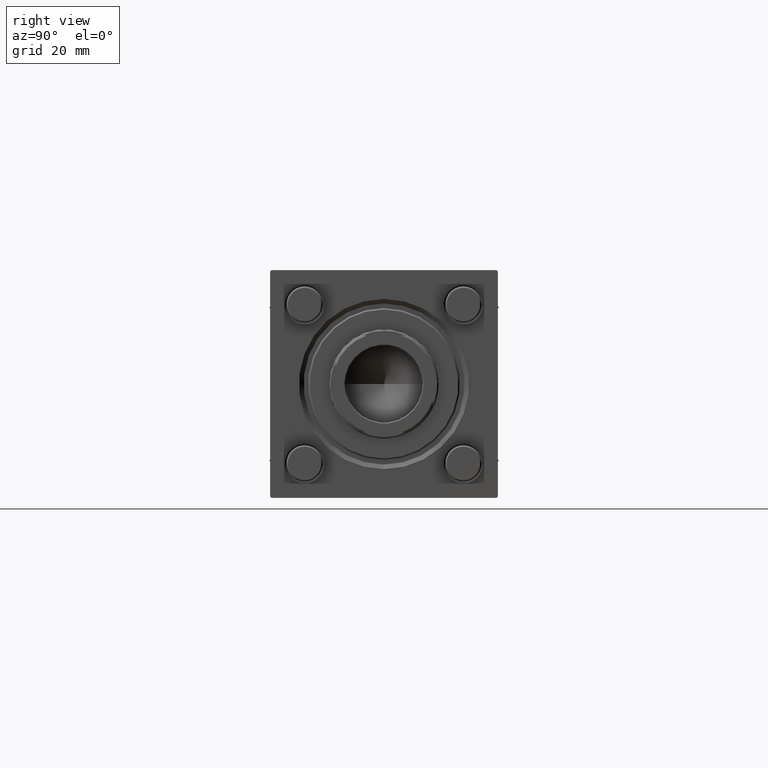
[diagram: clean part render]
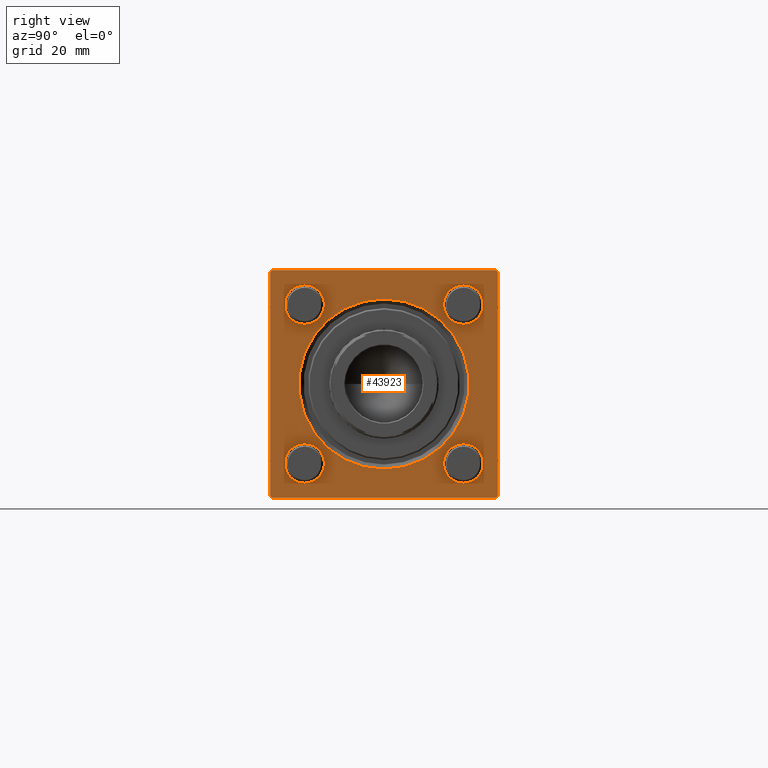
[diagram: same view with one face highlighted and labeled with its STEP entity id]
A machine part, right view. The second image highlights one B-rep face of the part: STEP entity #43923.
In plain terms, the highlighted planar face has unit normal (-1, 0, 0).
Its self-contained STEP definition (entity closure, byte-faithful):
#707 = DIRECTION ( 'NONE',  ( 0.000000000000000000, 0.000000000000000000, 1.000000000000000000 ) ) ;
#2027 = EDGE_CURVE ( 'NONE', #37401, #33654, #27386, .T. ) ;
#2113 = CIRCLE ( 'NONE', #7625, 27.99999999999999645 ) ;
#2155 = ORIENTED_EDGE ( 'NONE', *, *, #34070, .F. ) ;
#2345 = DIRECTION ( 'NONE',  ( 0.000000000000000000, 0.000000000000000000, 1.000000000000000000 ) ) ;
#2879 = CARTESIAN_POINT ( 'NONE',  ( 154.0000000000000000, 37.00000000000000000, 37.49999999999999289 ) ) ;
#2925 = DIRECTION ( 'NONE',  ( -1.000000000000000000, -0.000000000000000000, 0.000000000000000000 ) ) ;
#3000 = DIRECTION ( 'NONE',  ( -0.000000000000000000, 0.7071067811865425767, 0.7071067811865525687 ) ) ;
#3288 = CARTESIAN_POINT ( 'NONE',  ( 154.0000000000000000, 26.14999999999999858, -26.15000000000000213 ) ) ;
#3568 = VERTEX_POINT ( 'NONE', #23471 ) ;
#3899 = CIRCLE ( 'NONE', #51566, 6.500000000000002665 ) ;
#3925 = DIRECTION ( 'NONE',  ( 0.000000000000000000, 0.000000000000000000, 1.000000000000000000 ) ) ;
#3942 = DIRECTION ( 'NONE',  ( 0.000000000000000000, 0.000000000000000000, 1.000000000000000000 ) ) ;
#4030 = EDGE_CURVE ( 'NONE', #33654, #37401, #48496, .T. ) ;
#4685 = VERTEX_POINT ( 'NONE', #53277 ) ;
#6078 = FACE_BOUND ( 'NONE', #44342, .T. ) ;
#6622 = DIRECTION ( 'NONE',  ( 0.000000000000000000, -0.7071067811865474617, 0.7071067811865474617 ) ) ;
#7210 = EDGE_CURVE ( 'NONE', #14480, #38340, #38343, .T. ) ;
#7625 = AXIS2_PLACEMENT_3D ( 'NONE', #39410, #31104, #707 ) ;
#8717 = DIRECTION ( 'NONE',  ( -1.000000000000000000, -0.000000000000000000, 0.000000000000000000 ) ) ;
#8883 = EDGE_CURVE ( 'NONE', #42831, #14836, #41612, .T. ) ;
#9360 = EDGE_CURVE ( 'NONE', #4685, #3568, #12115, .T. ) ;
#9481 = CIRCLE ( 'NONE', #52485, 6.500000000000002665 ) ;
#9485 = ORIENTED_EDGE ( 'NONE', *, *, #8883, .T. ) ;
#10055 = DIRECTION ( 'NONE',  ( 0.000000000000000000, 0.000000000000000000, 1.000000000000000000 ) ) ;
#10107 = FACE_BOUND ( 'NONE', #34733, .T. ) ;
#10405 = DIRECTION ( 'NONE',  ( 0.000000000000000000, 0.000000000000000000, 1.000000000000000000 ) ) ;
#10755 = EDGE_CURVE ( 'NONE', #18927, #45772, #35847, .T. ) ;
#10757 = LINE ( 'NONE', #54901, #42349 ) ;
#11010 = DIRECTION ( 'NONE',  ( -1.000000000000000000, -0.000000000000000000, 0.000000000000000000 ) ) ;
#11147 = EDGE_CURVE ( 'NONE', #3568, #14480, #48894, .T. ) ;
#11401 = CARTESIAN_POINT ( 'NONE',  ( 154.0000000000000000, 26.14999999999999858, -26.15000000000000213 ) ) ;
#12115 = LINE ( 'NONE', #56271, #20290 ) ;
#12269 = DIRECTION ( 'NONE',  ( 0.000000000000000000, 0.000000000000000000, 1.000000000000000000 ) ) ;
#12478 = EDGE_LOOP ( 'NONE', ( #28608, #18610 ) ) ;
#12971 = CARTESIAN_POINT ( 'NONE',  ( 154.0000000000000000, 26.14999999999999858, -19.65000000000000213 ) ) ;
#13017 = EDGE_CURVE ( 'NONE', #30245, #17537, #10757, .T. ) ;
#13065 = ORIENTED_EDGE ( 'NONE', *, *, #2027, .T. ) ;
#13114 = CIRCLE ( 'NONE', #54320, 27.99999999999999645 ) ;
#13455 = ORIENTED_EDGE ( 'NONE', *, *, #13812, .T. ) ;
#13605 = CARTESIAN_POINT ( 'NONE',  ( 154.0000000000000000, 26.14999999999999858, -32.65000000000000568 ) ) ;
#13812 = EDGE_CURVE ( 'NONE', #45772, #18927, #3899, .T. ) ;
#14480 = VERTEX_POINT ( 'NONE', #40857 ) ;
#14836 = VERTEX_POINT ( 'NONE', #43831 ) ;
#14847 = VERTEX_POINT ( 'NONE', #16900 ) ;
#15669 = EDGE_CURVE ( 'NONE', #46744, #53798, #9481, .T. ) ;
#16216 = EDGE_CURVE ( 'NONE', #33070, #14847, #13114, .T. ) ;
#16238 = VECTOR ( 'NONE', #25627, 1000.000000000000000 ) ;
#16568 = DIRECTION ( 'NONE',  ( -1.000000000000000000, -0.000000000000000000, 0.000000000000000000 ) ) ;
#16900 = CARTESIAN_POINT ( 'NONE',  ( 154.0000000000000000, 3.429011037612588881E-15, 27.99999999999999645 ) ) ;
#17537 = VERTEX_POINT ( 'NONE', #41691 ) ;
#18610 = ORIENTED_EDGE ( 'NONE', *, *, #55695, .T. ) ;
#18927 = VERTEX_POINT ( 'NONE', #30986 ) ;
#20111 = CARTESIAN_POINT ( 'NONE',  ( 154.0000000000000000, -26.14999999999999147, -32.65000000000001279 ) ) ;
#20157 = ORIENTED_EDGE ( 'NONE', *, *, #46773, .T. ) ;
#20290 = VECTOR ( 'NONE', #43650, 1000.000000000000114 ) ;
#20308 = EDGE_CURVE ( 'NONE', #41506, #24732, #56138, .T. ) ;
#20595 = CARTESIAN_POINT ( 'NONE',  ( 154.0000000000000000, -26.14999999999999147, -26.15000000000000924 ) ) ;
#21295 = AXIS2_PLACEMENT_3D ( 'NONE', #54530, #46242, #2345 ) ;
#21401 = DIRECTION ( 'NONE',  ( 0.000000000000000000, 0.000000000000000000, 1.000000000000000000 ) ) ;
#21567 = ORIENTED_EDGE ( 'NONE', *, *, #33244, .T. ) ;
#21840 = EDGE_CURVE ( 'NONE', #53798, #46744, #27815, .T. ) ;
#22130 = AXIS2_PLACEMENT_3D ( 'NONE', #25746, #38935, #3942 ) ;
#22441 = CIRCLE ( 'NONE', #48058, 6.500000000000002665 ) ;
#23471 = CARTESIAN_POINT ( 'NONE',  ( 154.0000000000000000, -37.50000000000000000, 36.99999999999995026 ) ) ;
#23516 = CARTESIAN_POINT ( 'NONE',  ( 154.0000000000000000, 37.50000000000000000, 37.49999999999999289 ) ) ;
#23844 = VECTOR ( 'NONE', #34046, 1000.000000000000000 ) ;
#24314 = CARTESIAN_POINT ( 'NONE',  ( 154.0000000000000000, -36.99999999999998579, -37.50000000000000000 ) ) ;
#24331 = DIRECTION ( 'NONE',  ( -1.000000000000000000, -0.000000000000000000, 0.000000000000000000 ) ) ;
#24589 = DIRECTION ( 'NONE',  ( 0.000000000000000000, 0.000000000000000000, 1.000000000000000000 ) ) ;
#24732 = VERTEX_POINT ( 'NONE', #26244 ) ;
#24779 = CARTESIAN_POINT ( 'NONE',  ( 154.0000000000000000, -26.14999999999999147, -26.15000000000000924 ) ) ;
#24842 = VECTOR ( 'NONE', #6622, 1000.000000000000114 ) ;
#25627 = DIRECTION ( 'NONE',  ( 0.000000000000000000, -1.000000000000000000, -1.850371707708594316E-16 ) ) ;
#25746 = CARTESIAN_POINT ( 'NONE',  ( 154.0000000000000000, -26.14999999999999147, 26.15000000000000924 ) ) ;
#25904 = CARTESIAN_POINT ( 'NONE',  ( 154.0000000000000000, 37.50000000000000000, 37.49999999999999289 ) ) ;
#26205 = DIRECTION ( 'NONE',  ( 0.000000000000000000, 0.000000000000000000, 1.000000000000000000 ) ) ;
#26244 = CARTESIAN_POINT ( 'NONE',  ( 154.0000000000000000, -26.14999999999999147, -19.65000000000000924 ) ) ;
#26425 = AXIS2_PLACEMENT_3D ( 'NONE', #32135, #26688, #10055 ) ;
#26688 = DIRECTION ( 'NONE',  ( -1.000000000000000000, -0.000000000000000000, 0.000000000000000000 ) ) ;
#27386 = CIRCLE ( 'NONE', #26425, 6.500000000000002665 ) ;
#27815 = CIRCLE ( 'NONE', #48856, 6.500000000000002665 ) ;
#28608 = ORIENTED_EDGE ( 'NONE', *, *, #20308, .T. ) ;
#28961 = EDGE_LOOP ( 'NONE', ( #13455, #49198 ) ) ;
#29581 = ORIENTED_EDGE ( 'NONE', *, *, #7210, .T. ) ;
#30245 = VERTEX_POINT ( 'NONE', #37474 ) ;
#30405 = VECTOR ( 'NONE', #35696, 1000.000000000000000 ) ;
#30930 = EDGE_LOOP ( 'NONE', ( #33692, #33564 ) ) ;
#30986 = CARTESIAN_POINT ( 'NONE',  ( 154.0000000000000000, -26.14999999999999147, 32.65000000000001990 ) ) ;
#31104 = DIRECTION ( 'NONE',  ( -1.000000000000000000, -0.000000000000000000, 0.000000000000000000 ) ) ;
#31915 = FACE_BOUND ( 'NONE', #30930, .T. ) ;
#32135 = CARTESIAN_POINT ( 'NONE',  ( 154.0000000000000000, 26.14999999999999858, 26.15000000000000213 ) ) ;
#33070 = VERTEX_POINT ( 'NONE', #42983 ) ;
#33244 = EDGE_CURVE ( 'NONE', #14836, #4685, #47150, .T. ) ;
#33486 = DIRECTION ( 'NONE',  ( -1.000000000000000000, -0.000000000000000000, 0.000000000000000000 ) ) ;
#33564 = ORIENTED_EDGE ( 'NONE', *, *, #21840, .T. ) ;
#33654 = VERTEX_POINT ( 'NONE', #43059 ) ;
#33672 = CARTESIAN_POINT ( 'NONE',  ( 154.0000000000000000, 37.50000000000000000, 36.99999999999999289 ) ) ;
#33692 = ORIENTED_EDGE ( 'NONE', *, *, #15669, .T. ) ;
#34046 = DIRECTION ( 'NONE',  ( 0.000000000000000000, 0.7071067811865671127, -0.7071067811865279218 ) ) ;
#34070 = EDGE_CURVE ( 'NONE', #30245, #38340, #42146, .T. ) ;
#34733 = EDGE_LOOP ( 'NONE', ( #48364, #13065 ) ) ;
#35176 = CARTESIAN_POINT ( 'NONE',  ( 154.0000000000000000, -26.14999999999999147, 26.15000000000000924 ) ) ;
#35696 = DIRECTION ( 'NONE',  ( 0.000000000000000000, -9.251858538542972814E-17, -1.000000000000000000 ) ) ;
#35749 = EDGE_LOOP ( 'NONE', ( #43408, #29581, #2155, #40958, #49343, #9485, #21567, #56393 ) ) ;
#35847 = CIRCLE ( 'NONE', #22130, 6.500000000000002665 ) ;
#36153 = VECTOR ( 'NONE', #54173, 1000.000000000000000 ) ;
#36473 = FACE_BOUND ( 'NONE', #12478, .T. ) ;
#37325 = FACE_OUTER_BOUND ( 'NONE', #35749, .T. ) ;
#37384 = DIRECTION ( 'NONE',  ( 0.000000000000000000, 0.000000000000000000, 1.000000000000000000 ) ) ;
#37401 = VERTEX_POINT ( 'NONE', #41049 ) ;
#37474 = CARTESIAN_POINT ( 'NONE',  ( 154.0000000000000000, 37.00000000000000000, -37.50000000000000000 ) ) ;
#37810 = ORIENTED_EDGE ( 'NONE', *, *, #16216, .T. ) ;
#38340 = VERTEX_POINT ( 'NONE', #42068 ) ;
#38343 = LINE ( 'NONE', #24314, #23844 ) ;
#38935 = DIRECTION ( 'NONE',  ( -1.000000000000000000, -0.000000000000000000, 0.000000000000000000 ) ) ;
#39148 = CARTESIAN_POINT ( 'NONE',  ( 154.0000000000000000, -37.50000000000000000, 37.49999999999997868 ) ) ;
#39281 = VECTOR ( 'NONE', #47311, 1000.000000000000000 ) ;
#39410 = CARTESIAN_POINT ( 'NONE',  ( 154.0000000000000000, 0.000000000000000000, 0.000000000000000000 ) ) ;
#40444 = LINE ( 'NONE', #23516, #36153 ) ;
#40857 = CARTESIAN_POINT ( 'NONE',  ( 154.0000000000000000, -37.50000000000000711, -37.00000000000000711 ) ) ;
#40958 = ORIENTED_EDGE ( 'NONE', *, *, #13017, .T. ) ;
#41049 = CARTESIAN_POINT ( 'NONE',  ( 154.0000000000000000, 26.14999999999999858, 32.65000000000001279 ) ) ;
#41470 = AXIS2_PLACEMENT_3D ( 'NONE', #20595, #24331, #12269 ) ;
#41506 = VERTEX_POINT ( 'NONE', #20111 ) ;
#41612 = LINE ( 'NONE', #2879, #24842 ) ;
#41691 = CARTESIAN_POINT ( 'NONE',  ( 154.0000000000000000, 37.50000000000000000, -36.99999999999999289 ) ) ;
#42068 = CARTESIAN_POINT ( 'NONE',  ( 154.0000000000000000, -36.99999999999998579, -37.50000000000000000 ) ) ;
#42146 = LINE ( 'NONE', #42724, #39281 ) ;
#42349 = VECTOR ( 'NONE', #3000, 999.9999999999998863 ) ;
#42724 = CARTESIAN_POINT ( 'NONE',  ( 154.0000000000000000, 37.50000000000000000, -37.50000000000000000 ) ) ;
#42831 = VERTEX_POINT ( 'NONE', #33672 ) ;
#42913 = DIRECTION ( 'NONE',  ( -1.000000000000000000, -0.000000000000000000, 0.000000000000000000 ) ) ;
#42983 = CARTESIAN_POINT ( 'NONE',  ( 154.0000000000000000, 0.000000000000000000, -27.99999999999999645 ) ) ;
#43059 = CARTESIAN_POINT ( 'NONE',  ( 154.0000000000000000, 26.14999999999999858, 19.64999999999999858 ) ) ;
#43408 = ORIENTED_EDGE ( 'NONE', *, *, #11147, .T. ) ;
#43650 = DIRECTION ( 'NONE',  ( -0.000000000000000000, -0.7071067811865474617, -0.7071067811865474617 ) ) ;
#43831 = CARTESIAN_POINT ( 'NONE',  ( 154.0000000000000000, 37.00000000000000000, 37.49999999999999289 ) ) ;
#43923 = ADVANCED_FACE ( 'NONE', ( #36473, #31915, #10107, #50525, #6078, #37325 ), #49962, .F. ) ;
#44342 = EDGE_LOOP ( 'NONE', ( #37810, #20157 ) ) ;
#45687 = CARTESIAN_POINT ( 'NONE',  ( 154.0000000000000000, -26.14999999999999147, 19.65000000000000568 ) ) ;
#45772 = VERTEX_POINT ( 'NONE', #45687 ) ;
#46242 = DIRECTION ( 'NONE',  ( -1.000000000000000000, -0.000000000000000000, 0.000000000000000000 ) ) ;
#46744 = VERTEX_POINT ( 'NONE', #13605 ) ;
#46773 = EDGE_CURVE ( 'NONE', #14847, #33070, #2113, .T. ) ;
#47150 = LINE ( 'NONE', #25904, #16238 ) ;
#47222 = CARTESIAN_POINT ( 'NONE',  ( 154.0000000000000000, 26.14999999999999858, 26.15000000000000213 ) ) ;
#47311 = DIRECTION ( 'NONE',  ( 0.000000000000000000, -1.000000000000000000, 0.000000000000000000 ) ) ;
#48058 = AXIS2_PLACEMENT_3D ( 'NONE', #24779, #11010, #37384 ) ;
#48364 = ORIENTED_EDGE ( 'NONE', *, *, #4030, .T. ) ;
#48496 = CIRCLE ( 'NONE', #52176, 6.500000000000002665 ) ;
#48856 = AXIS2_PLACEMENT_3D ( 'NONE', #3288, #8717, #26205 ) ;
#48894 = LINE ( 'NONE', #39148, #30405 ) ;
#49198 = ORIENTED_EDGE ( 'NONE', *, *, #10755, .T. ) ;
#49343 = ORIENTED_EDGE ( 'NONE', *, *, #50255, .F. ) ;
#49696 = CARTESIAN_POINT ( 'NONE',  ( 154.0000000000000000, 0.000000000000000000, 0.000000000000000000 ) ) ;
#49962 = PLANE ( 'NONE',  #21295 ) ;
#50255 = EDGE_CURVE ( 'NONE', #42831, #17537, #40444, .T. ) ;
#50525 = FACE_BOUND ( 'NONE', #28961, .T. ) ;
#51566 = AXIS2_PLACEMENT_3D ( 'NONE', #35176, #16568, #3925 ) ;
#52176 = AXIS2_PLACEMENT_3D ( 'NONE', #47222, #42913, #21401 ) ;
#52485 = AXIS2_PLACEMENT_3D ( 'NONE', #11401, #33486, #24589 ) ;
#53277 = CARTESIAN_POINT ( 'NONE',  ( 154.0000000000000000, -36.99999999999997158, 37.49999999999997868 ) ) ;
#53798 = VERTEX_POINT ( 'NONE', #12971 ) ;
#54173 = DIRECTION ( 'NONE',  ( 0.000000000000000000, 0.000000000000000000, -1.000000000000000000 ) ) ;
#54320 = AXIS2_PLACEMENT_3D ( 'NONE', #49696, #2925, #10405 ) ;
#54530 = CARTESIAN_POINT ( 'NONE',  ( 154.0000000000000000, 0.000000000000000000, 0.000000000000000000 ) ) ;
#54901 = CARTESIAN_POINT ( 'NONE',  ( 154.0000000000000000, 37.50000000000000000, -36.99999999999999289 ) ) ;
#55695 = EDGE_CURVE ( 'NONE', #24732, #41506, #22441, .T. ) ;
#56138 = CIRCLE ( 'NONE', #41470, 6.500000000000002665 ) ;
#56271 = CARTESIAN_POINT ( 'NONE',  ( 154.0000000000000000, -37.50000000000000000, 36.99999999999995026 ) ) ;
#56393 = ORIENTED_EDGE ( 'NONE', *, *, #9360, .T. ) ;